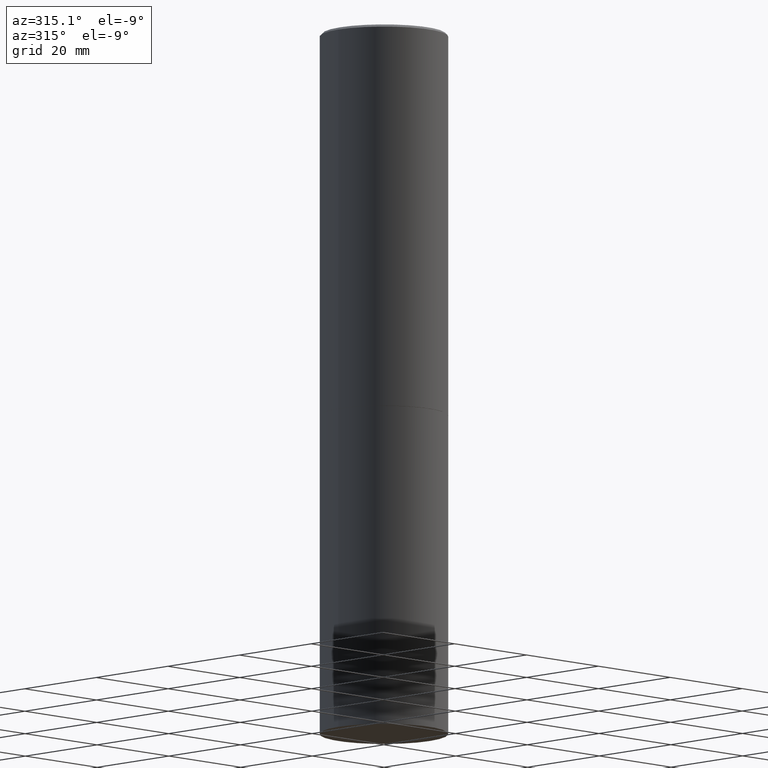
[diagram: clean part render]
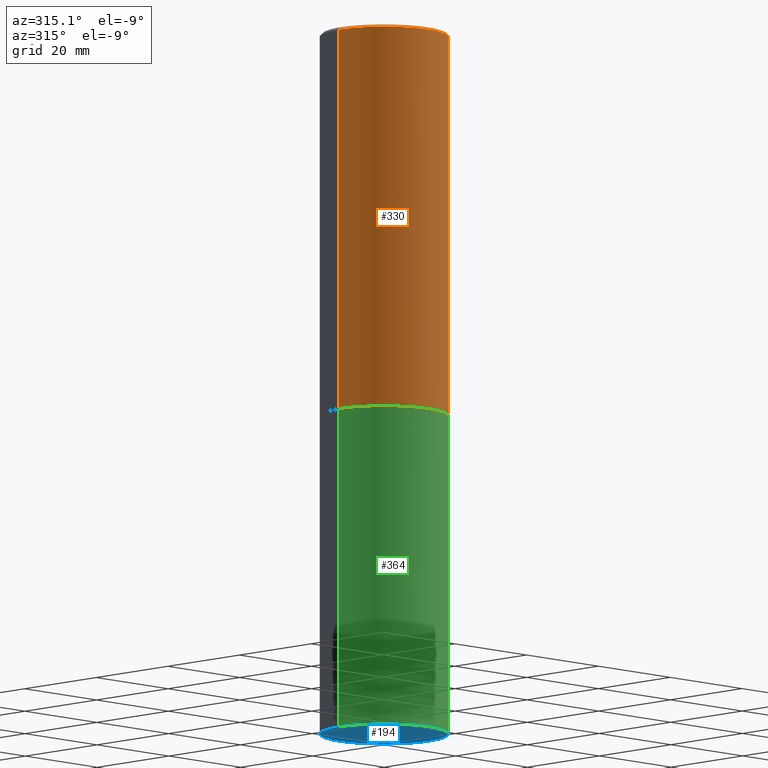
[diagram: same view with three faces highlighted in distinct colors, each labeled with its STEP entity id]
A machine part, auxiliary view with three faces highlighted in distinct colors.
Their STEP definitions:

[orange] entity #330 — the highlighted cylindrical surface (partial cylindrical patch) has radius 12.7 mm, axis along (-0, 0, 1).
#2 = CIRCLE ( 'NONE', #220, 0.5000000000000000000 ) ;
#6 = CARTESIAN_POINT ( 'NONE',  ( 0.000000000000000000, 0.000000000000000000, 0.000000000000000000 ) ) ;
#30 = CARTESIAN_POINT ( 'NONE',  ( -0.5000000000000000000, -1.717677402183226998E-15, -2.999000000000000554 ) ) ;
#57 = AXIS2_PLACEMENT_3D ( 'NONE', #363, #107, #76 ) ;
#64 = AXIS2_PLACEMENT_3D ( 'NONE', #6, #292, #118 ) ;
#68 = VERTEX_POINT ( 'NONE', #30 ) ;
#69 = FACE_OUTER_BOUND ( 'NONE', #70, .T. ) ;
#70 = EDGE_LOOP ( 'NONE', ( #278, #304, #309, #269 ) ) ;
#76 = DIRECTION ( 'NONE',  ( 1.000000000000000000, -6.982962677686266711E-15, 0.000000000000000000 ) ) ;
#107 = DIRECTION ( 'NONE',  ( -2.445468806185136597E-29, 3.491481338843145583E-15, 1.000000000000000000 ) ) ;
#118 = DIRECTION ( 'NONE',  ( 1.000000000000000000, -6.982962677686267499E-15, 4.876176775795936353E-29 ) ) ;
#123 = LINE ( 'NONE', #284, #251 ) ;
#127 = EDGE_CURVE ( 'NONE', #68, #358, #320, .T. ) ;
#140 = DIRECTION ( 'NONE',  ( 1.000000000000000000, -6.982962677686266711E-15, 0.000000000000000000 ) ) ;
#168 = EDGE_CURVE ( 'NONE', #68, #361, #2, .T. ) ;
#170 = DIRECTION ( 'NONE',  ( -2.445468806185136597E-29, 3.491481338843145583E-15, 1.000000000000000000 ) ) ;
#171 = EDGE_CURVE ( 'NONE', #361, #299, #123, .T. ) ;
#180 = CARTESIAN_POINT ( 'NONE',  ( 7.333960949749226429E-29, -1.047095253519059492E-14, -2.999000000000000554 ) ) ;
#185 = CYLINDRICAL_SURFACE ( 'NONE', #64, 0.4999999999999998335 ) ;
#190 = CARTESIAN_POINT ( 'NONE',  ( -0.4999999999999997224, 3.421651712066268085E-15, -0.02000000000000012879 ) ) ;
#210 = CARTESIAN_POINT ( 'NONE',  ( 0.4999999999999997224, -3.500078625662627502E-15, -0.02000000000000012879 ) ) ;
#211 = EDGE_CURVE ( 'NONE', #358, #299, #310, .T. ) ;
#220 = AXIS2_PLACEMENT_3D ( 'NONE', #180, #170, #140 ) ;
#222 = DIRECTION ( 'NONE',  ( -2.445468806185136877E-29, 3.491481338843145188E-15, 1.000000000000000000 ) ) ;
#228 = DIRECTION ( 'NONE',  ( -2.445468806185136877E-29, 3.491481338843145188E-15, 1.000000000000000000 ) ) ;
#231 = VECTOR ( 'NONE', #222, 39.37007874015748143 ) ;
#246 = CARTESIAN_POINT ( 'NONE',  ( 0.5000000000000000000, -1.396243387403372828E-14, -2.999000000000000554 ) ) ;
#251 = VECTOR ( 'NONE', #228, 39.37007874015748143 ) ;
#252 = CARTESIAN_POINT ( 'NONE',  ( -0.4999999999999998335, 3.552713678800499746E-15, -2.459467545127452330E-29 ) ) ;
#269 = ORIENTED_EDGE ( 'NONE', *, *, #211, .F. ) ;
#278 = ORIENTED_EDGE ( 'NONE', *, *, #127, .F. ) ;
#284 = CARTESIAN_POINT ( 'NONE',  ( 0.4999999999999998335, -3.491481338843132566E-15, 2.438088387897967336E-29 ) ) ;
#292 = DIRECTION ( 'NONE',  ( -2.445468806185136597E-29, 3.491481338843145583E-15, 1.000000000000000000 ) ) ;
#299 = VERTEX_POINT ( 'NONE', #210 ) ;
#304 = ORIENTED_EDGE ( 'NONE', *, *, #168, .T. ) ;
#309 = ORIENTED_EDGE ( 'NONE', *, *, #171, .T. ) ;
#310 = CIRCLE ( 'NONE', #57, 0.4999999999999997224 ) ;
#320 = LINE ( 'NONE', #252, #231 ) ;
#330 = ADVANCED_FACE ( 'NONE', ( #69 ), #185, .T. ) ;
#358 = VERTEX_POINT ( 'NONE', #190 ) ;
#361 = VERTEX_POINT ( 'NONE', #246 ) ;
#363 = CARTESIAN_POINT ( 'NONE',  ( 4.890937612370304688E-31, -6.982962677686335982E-17, -0.02000000000000012879 ) ) ;

[blue] entity #194 — the highlighted planar face has unit normal (0, -0, -1).
#25 = DIRECTION ( 'NONE',  ( 1.000000000000000000, -6.982962677686262766E-15, 0.000000000000000000 ) ) ;
#32 = DIRECTION ( 'NONE',  ( -1.000000000000000000, 6.982962677686265922E-15, -4.876176775795935793E-29 ) ) ;
#38 = CARTESIAN_POINT ( 'NONE',  ( 1.345007843401824904E-28, -1.920314736363729972E-14, -5.500000000000000000 ) ) ;
#50 = FACE_OUTER_BOUND ( 'NONE', #307, .T. ) ;
#51 = VERTEX_POINT ( 'NONE', #238 ) ;
#56 = DIRECTION ( 'NONE',  ( 2.438088387897960049E-29, -3.491481338843145188E-15, -1.000000000000000000 ) ) ;
#61 = EDGE_CURVE ( 'NONE', #159, #51, #356, .T. ) ;
#81 = ORIENTED_EDGE ( 'NONE', *, *, #259, .F. ) ;
#86 = CARTESIAN_POINT ( 'NONE',  ( 3.491481338843267462E-15, 0.4999999999999807931, -5.500000000000001776 ) ) ;
#94 = AXIS2_PLACEMENT_3D ( 'NONE', #86, #56, #32 ) ;
#144 = DIRECTION ( 'NONE',  ( -2.445468806185136597E-29, 3.491481338843145583E-15, 1.000000000000000000 ) ) ;
#159 = VERTEX_POINT ( 'NONE', #232 ) ;
#172 = PLANE ( 'NONE',  #94 ) ;
#187 = AXIS2_PLACEMENT_3D ( 'NONE', #38, #321, #327 ) ;
#188 = ORIENTED_EDGE ( 'NONE', *, *, #61, .F. ) ;
#194 = ADVANCED_FACE ( 'NONE', ( #50 ), #172, .T. ) ;
#206 = CIRCLE ( 'NONE', #187, 0.5000000000000000000 ) ;
#232 = CARTESIAN_POINT ( 'NONE',  ( -0.5000000000000000000, -1.128608201128286632E-14, -5.500000000000000000 ) ) ;
#238 = CARTESIAN_POINT ( 'NONE',  ( 0.5000000000000000000, -2.269462870248043307E-14, -5.500000000000000000 ) ) ;
#259 = EDGE_CURVE ( 'NONE', #51, #159, #206, .T. ) ;
#307 = EDGE_LOOP ( 'NONE', ( #81, #188 ) ) ;
#308 = AXIS2_PLACEMENT_3D ( 'NONE', #347, #144, #25 ) ;
#321 = DIRECTION ( 'NONE',  ( -2.445468806185136597E-29, 3.491481338843145583E-15, 1.000000000000000000 ) ) ;
#327 = DIRECTION ( 'NONE',  ( 1.000000000000000000, -6.982962677686262766E-15, 0.000000000000000000 ) ) ;
#347 = CARTESIAN_POINT ( 'NONE',  ( 1.345007843401824904E-28, -1.920314736363729972E-14, -5.500000000000000000 ) ) ;
#356 = CIRCLE ( 'NONE', #308, 0.5000000000000000000 ) ;

[green] entity #364 — the highlighted cylindrical surface (partial cylindrical patch) has radius 12.7 mm, axis along (-0, 0, 1).
#23 = ORIENTED_EDGE ( 'NONE', *, *, #61, .T. ) ;
#24 = EDGE_CURVE ( 'NONE', #159, #62, #134, .T. ) ;
#25 = DIRECTION ( 'NONE',  ( 1.000000000000000000, -6.982962677686262766E-15, 0.000000000000000000 ) ) ;
#36 = VERTEX_POINT ( 'NONE', #47 ) ;
#41 = ORIENTED_EDGE ( 'NONE', *, *, #322, .T. ) ;
#43 = DIRECTION ( 'NONE',  ( -2.445468806185136877E-29, 3.491481338843145188E-15, 1.000000000000000000 ) ) ;
#47 = CARTESIAN_POINT ( 'NONE',  ( 0.5000000000000000000, -1.396592535537256813E-14, -2.999999999999999556 ) ) ;
#51 = VERTEX_POINT ( 'NONE', #238 ) ;
#52 = DIRECTION ( 'NONE',  ( 1.000000000000000000, -6.982962677686266711E-15, 4.876176775795935793E-29 ) ) ;
#61 = EDGE_CURVE ( 'NONE', #159, #51, #356, .T. ) ;
#62 = VERTEX_POINT ( 'NONE', #142 ) ;
#109 = DIRECTION ( 'NONE',  ( -2.445468806185136597E-29, 3.491481338843145583E-15, 1.000000000000000000 ) ) ;
#112 = AXIS2_PLACEMENT_3D ( 'NONE', #243, #109, #52 ) ;
#117 = FACE_OUTER_BOUND ( 'NONE', #337, .T. ) ;
#131 = ORIENTED_EDGE ( 'NONE', *, *, #272, .F. ) ;
#134 = LINE ( 'NONE', #242, #362 ) ;
#135 = CYLINDRICAL_SURFACE ( 'NONE', #112, 0.5000000000000000000 ) ;
#142 = CARTESIAN_POINT ( 'NONE',  ( -0.5000000000000000000, -1.128608201128286632E-14, -2.999999999999999556 ) ) ;
#144 = DIRECTION ( 'NONE',  ( -2.445468806185136597E-29, 3.491481338843145583E-15, 1.000000000000000000 ) ) ;
#159 = VERTEX_POINT ( 'NONE', #232 ) ;
#177 = LINE ( 'NONE', #287, #352 ) ;
#232 = CARTESIAN_POINT ( 'NONE',  ( -0.5000000000000000000, -1.128608201128286632E-14, -5.500000000000000000 ) ) ;
#238 = CARTESIAN_POINT ( 'NONE',  ( 0.5000000000000000000, -2.269462870248043307E-14, -5.500000000000000000 ) ) ;
#242 = CARTESIAN_POINT ( 'NONE',  ( -0.5000000000000000000, 3.552713678800500929E-15, -2.459467545127452891E-29 ) ) ;
#243 = CARTESIAN_POINT ( 'NONE',  ( 0.000000000000000000, 0.000000000000000000, 0.000000000000000000 ) ) ;
#256 = CARTESIAN_POINT ( 'NONE',  ( 7.336406418555408669E-29, -1.047444401652943478E-14, -2.999999999999999556 ) ) ;
#263 = DIRECTION ( 'NONE',  ( -2.445468806185136597E-29, 3.491481338843145583E-15, 1.000000000000000000 ) ) ;
#265 = DIRECTION ( 'NONE',  ( 1.000000000000000000, -6.982962677686266711E-15, 0.000000000000000000 ) ) ;
#272 = EDGE_CURVE ( 'NONE', #62, #36, #291, .T. ) ;
#287 = CARTESIAN_POINT ( 'NONE',  ( 0.5000000000000000000, -3.491481338843133355E-15, 2.438088387897967896E-29 ) ) ;
#291 = CIRCLE ( 'NONE', #303, 0.5000000000000000000 ) ;
#303 = AXIS2_PLACEMENT_3D ( 'NONE', #256, #263, #265 ) ;
#308 = AXIS2_PLACEMENT_3D ( 'NONE', #347, #144, #25 ) ;
#322 = EDGE_CURVE ( 'NONE', #51, #36, #177, .T. ) ;
#329 = ORIENTED_EDGE ( 'NONE', *, *, #24, .F. ) ;
#337 = EDGE_LOOP ( 'NONE', ( #329, #23, #41, #131 ) ) ;
#347 = CARTESIAN_POINT ( 'NONE',  ( 1.345007843401824904E-28, -1.920314736363729972E-14, -5.500000000000000000 ) ) ;
#352 = VECTOR ( 'NONE', #353, 39.37007874015748143 ) ;
#353 = DIRECTION ( 'NONE',  ( -2.445468806185136877E-29, 3.491481338843145188E-15, 1.000000000000000000 ) ) ;
#356 = CIRCLE ( 'NONE', #308, 0.5000000000000000000 ) ;
#362 = VECTOR ( 'NONE', #43, 39.37007874015748143 ) ;
#364 = ADVANCED_FACE ( 'NONE', ( #117 ), #135, .T. ) ;